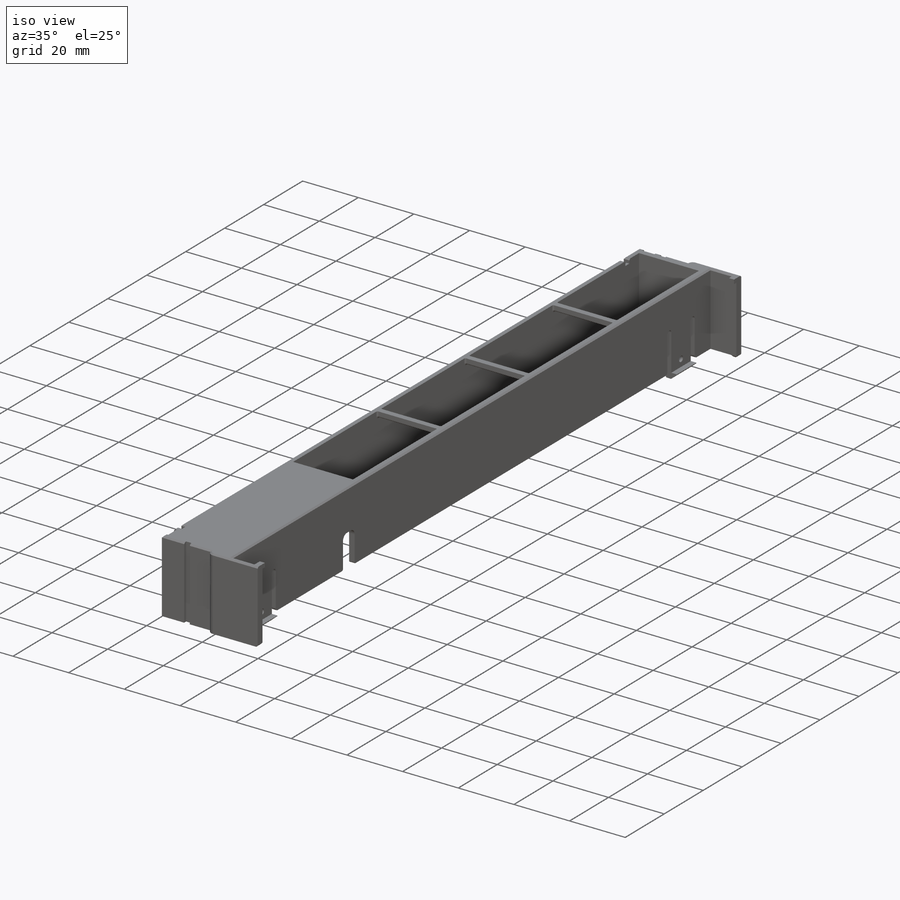
[diagram: iso view]
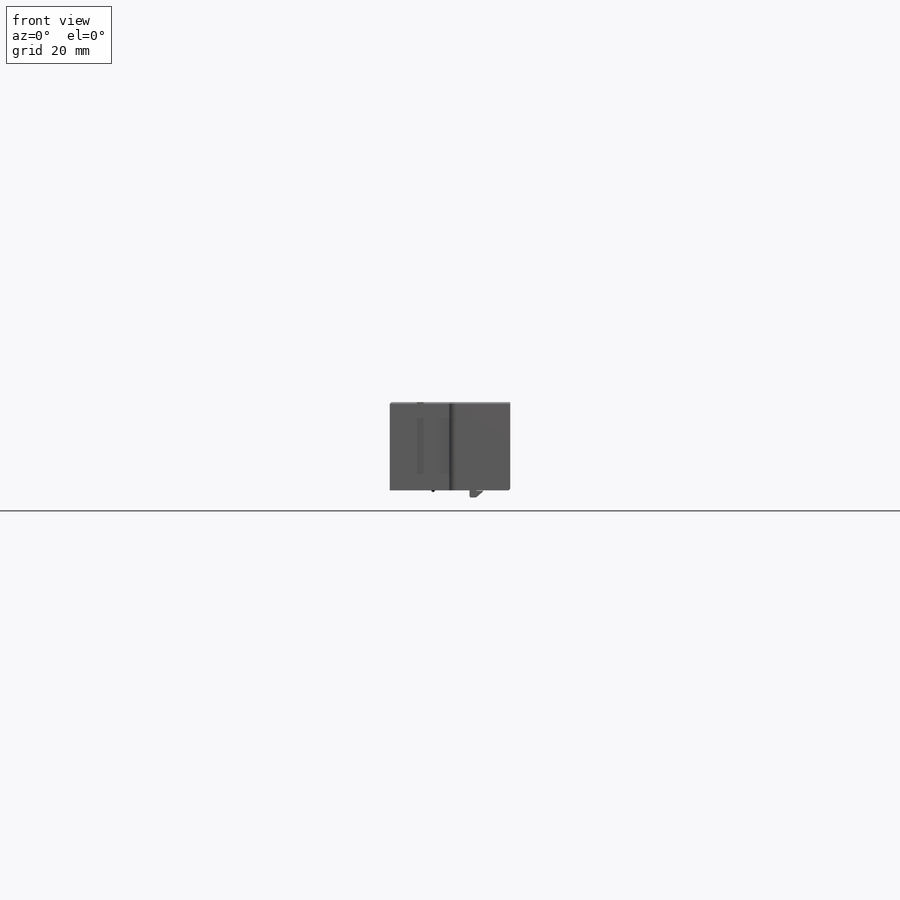
[diagram: front view]
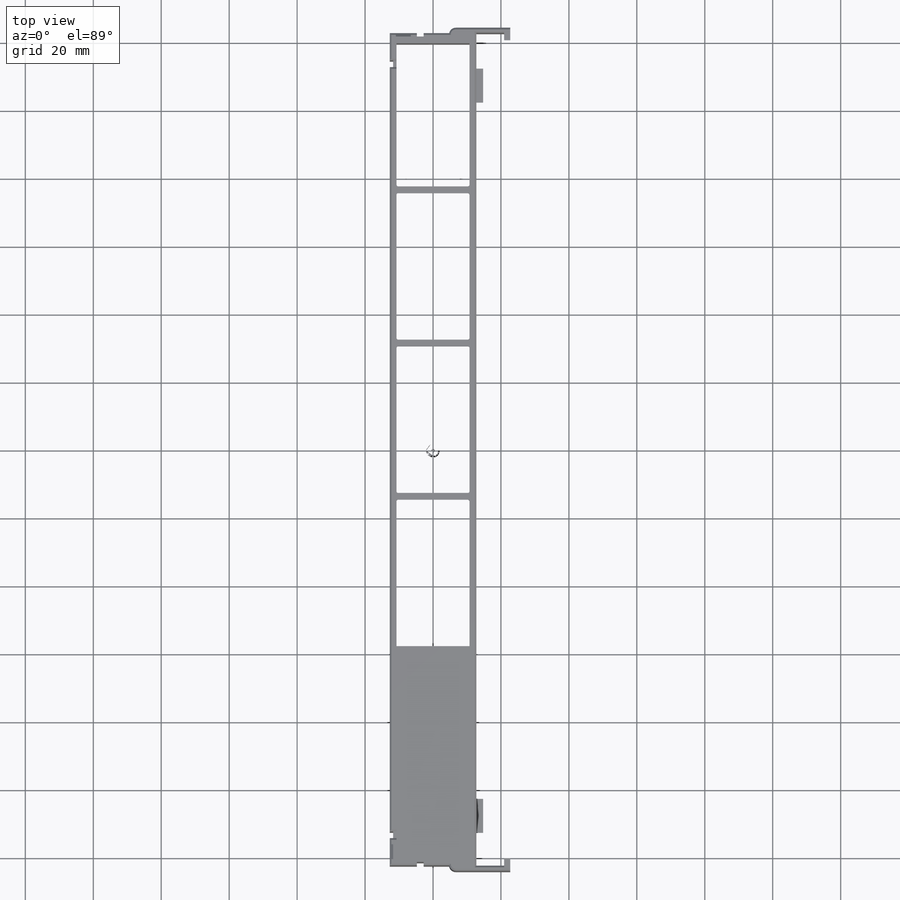
[diagram: top view]
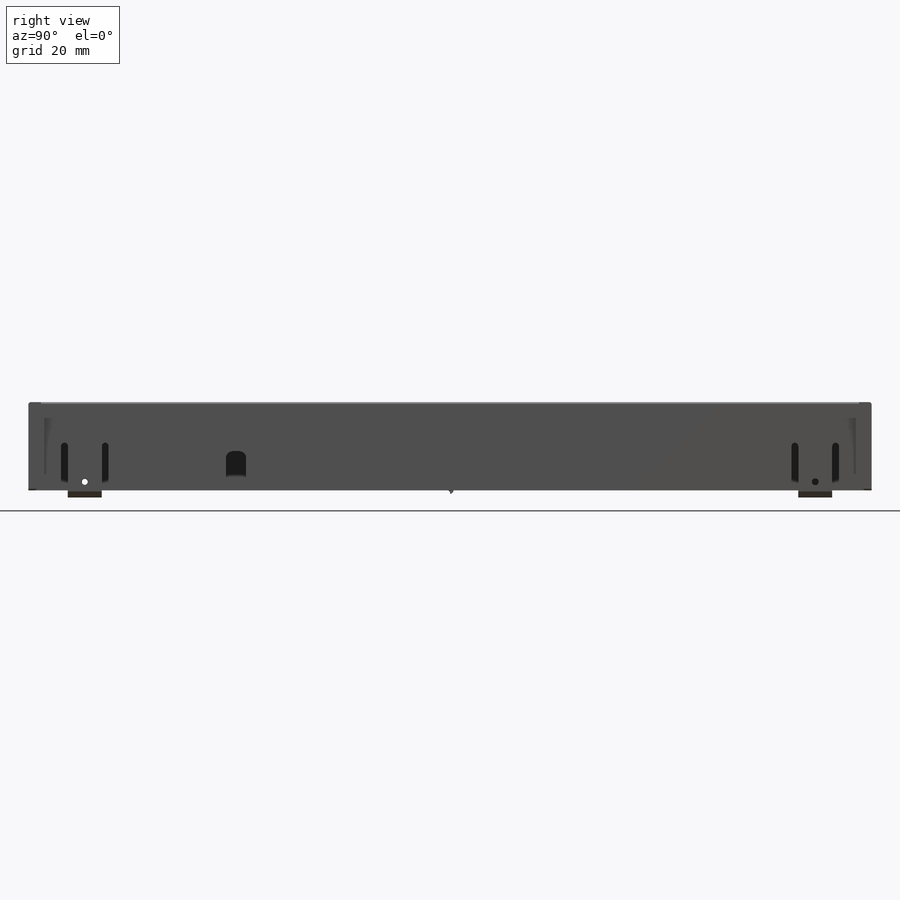
[diagram: right view]
SOLIDWORKS PART (.sldprt)
format: sldprt  version: not decoded by parser v0  size: 1,197,056 bytes
history: native  units: mm
features: sketch x25, cut_extrude x14, extrude x11, fillet x6, chamfer x5, plane x2, material x1 (+13 scaffold rows collapsed)
feature tree (77):
  scaffold x13  (default folders/planes/origin — collapsed)
  material  "ABS"
  sketch  "Sketch1"  dims[D1=245.0mm D2=25.5mm D3=2.0mm D4=2.0mm]
  extrude  "Boss-Extrude1"  Depth=26mm
  plane  "Plane1"
  plane  "Plane2"
  sketch  "Sketch5"  dims[c1.D1=1.0mm c1.D2=25.0mm c2.D2=45.0deg c2.D3=1.0mm c3.D2=1.0mm c3.D4=~1.414214mm c4.D4=45.0deg c4.D1=45.0deg c4.D2=1.0mm c4.D3=1.0mm c5.D4=2.0mm c5.D5=26.0mm]
  cut_extrude  "Cut-Extrude4"  Depth=4.4mm
  sketch  "Sketch8"  dims[c1.D1=1.0mm c1.D2=45.0deg c1.D3=1.0mm c1.D4=25.0mm c2.D1=45.0deg c2.D2=1.0mm c2.D3=1.0mm c2.D4=2.0mm c2.D5=26.0mm]
  cut_extrude  "Cut-Extrude5"  Depth=4.4mm
  sketch  "Sketch10"  dims[c1.D1=75.2mm c1.D2=8.0mm c1.D3=1.6mm c2.D1=248.2mm c2.D2=8.0mm c2.D3=245.2mm c2.D4=8.2mm c2.D5=1.8mm c2.D6=243.2mm]
  extrude  "Boss-Extrude3"  [1 undecoded]
  fillet  "Fillet1"  Radius=2mm
  sketch  "Sketch11"  dims[c1.D1=50.0mm c1.D2=10.0mm c1.D3=5.0mm c2.D1=5.0mm c2.D4=2.0mm c2.D5=10.0mm c2.D6=6.0mm c2.D7=1.0mm]
  cut_extrude  "Cut-Extrude6"  [1 undecoded]
  fillet  "Fillet2"  Radius=1mm
  sketch  "Sketch12"  dims[D1=2.1mm]
  extrude  "Boss-Extrude4"  [1 undecoded]
  sketch  "Sketch13"  dims[D1=2.0mm D2=1.4mm]
  extrude  "Boss-Extrude5"  Depth=2mm
  chamfer  "Chamfer1"  Distance=2.1mm
  sketch  "Sketch15"  dims[D1=2.0mm D2=1.0mm D3=8.0mm]
  cut_extrude  "Cut-Extrude7"  [1 undecoded]
  sketch  "Sketch16"  dims[D1=240.8mm]
  extrude  "Boss-Extrude7"  Depth=1.5mm
  chamfer  "Chamfer2"  Distance=0.5mm Angle=45deg
  sketch  "Sketch18"  dims[D1=2.0mm D2=60.5mm]
  extrude  "Boss-Extrude9"  [1 undecoded]
  sketch  "Sketch19"  dims[D1=1.0mm]
  cut_extrude  "Cut-Extrude8"  [1 undecoded]
  sketch  "Sketch21"  dims[D1=2.0mm]
  extrude  "Boss-Extrude11"  Depth=2mm
  sketch  "Sketch22"  dims[D1=3.0mm D2=10.75mm]
  cut_extrude  "Cut-Extrude9"  [1 undecoded]
  sketch  "Sketch23"  dims[D1=3.0mm]
  cut_extrude  "Cut-Extrude10"  [1 undecoded]
  sketch  "Sketch24"
  cut_extrude  "Cut-Extrude11"  Depth=1.5mm
  chamfer  "Chamfer3"  Distance=0.5mm Angle=45deg
  sketch  "Sketch25"  dims[D1=2.0mm D2=10.0mm]
  extrude  "Boss-Extrude12"  [1 undecoded]
  sketch  "Sketch26"  dims[D1=15.0mm]
  cut_extrude  "Cut-Extrude12"  Depth=1.5mm
  sketch  "Sketch27"  dims[D1=5.0mm D2=6.0mm]
  extrude  "Boss-Extrude13"  [1 undecoded]
  fillet  "Fillet5"  Radius=3mm
  sketch  "Sketch28"
  cut_extrude  "Cut-Extrude13"  Depth=6mm
  sketch  "Sketch29"  dims[D1=5.0mm]
  cut_extrude  "Cut-Extrude14"  Depth=3mm
  sketch  "Sketch30"  dims[D1=6.0mm D2=0.0mm D3=11.5mm]
  cut_extrude  "Cut-Extrude15"  [1 undecoded]
  fillet  "Fillet6"  Radius=2mm
  chamfer  "Chamfer4"  Distance=0.3mm Angle=45deg
  sketch  "Sketch32"  dims[D1=0.0mm]
  extrude  "Boss-Extrude14"  Depth=1mm
  fillet  "Fillet3"  Radius=0.5mm
  sketch  "Sketch31"  dims[D1=2.0mm D2=2.5mm]
  cut_extrude  "Cut-Extrude16"  [1 undecoded]
  fillet  "Fillet7"  Radius=0.5mm
  chamfer  "Chamfer5"  Distance=1.2mm Angle=45deg
  sketch  "Sketch33"  dims[D1=1.8mm]
  cut_extrude  "Cut-Extrude17"  [1 undecoded]
  sketch  "Sketch34"  dims[D1=0.0mm D2=0.0mm]
  extrude  "Boss-Extrude15"  Depth=1mm
decode coverage: 46 of 61 modeling features carry decoded parameters
note: ~ marks probable driven/reference dimensions
note: 13 parameter values undecoded
summary: no parameter record found for 13 features
note: suppression state not decoded; provenance and decode notes live in map.json
